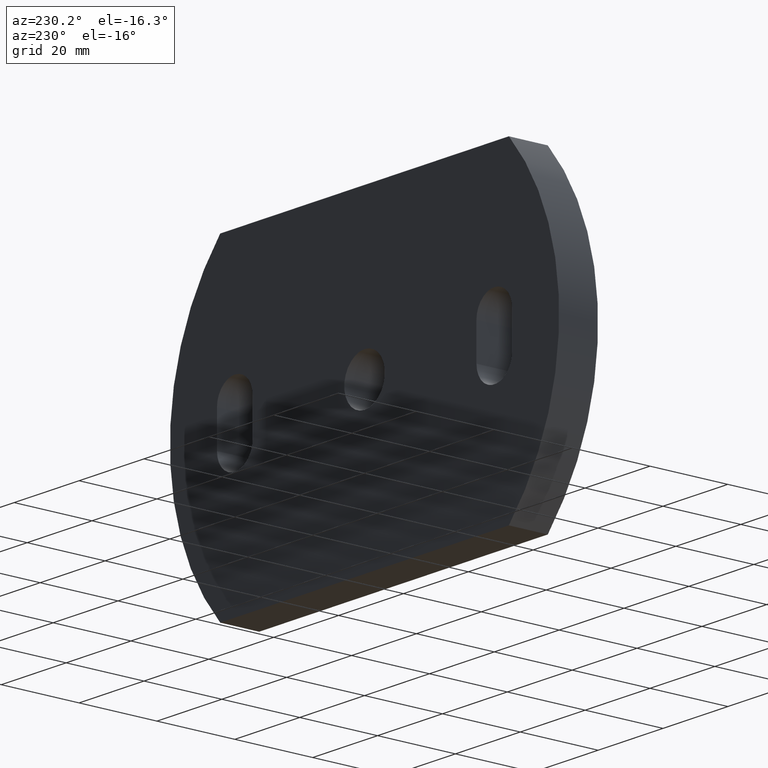
[diagram: clean part render]
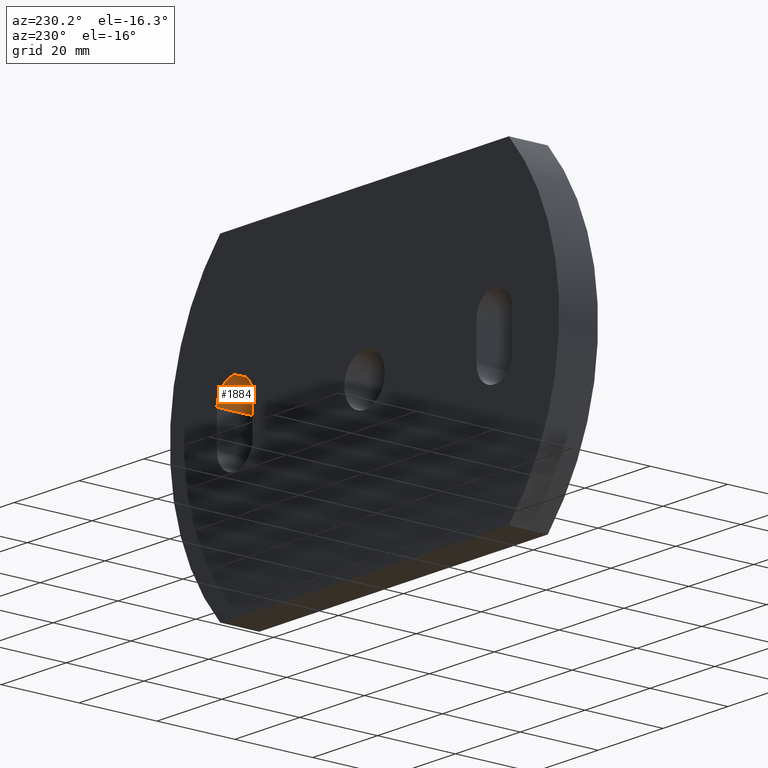
[diagram: same view with one face highlighted and labeled with its STEP entity id]
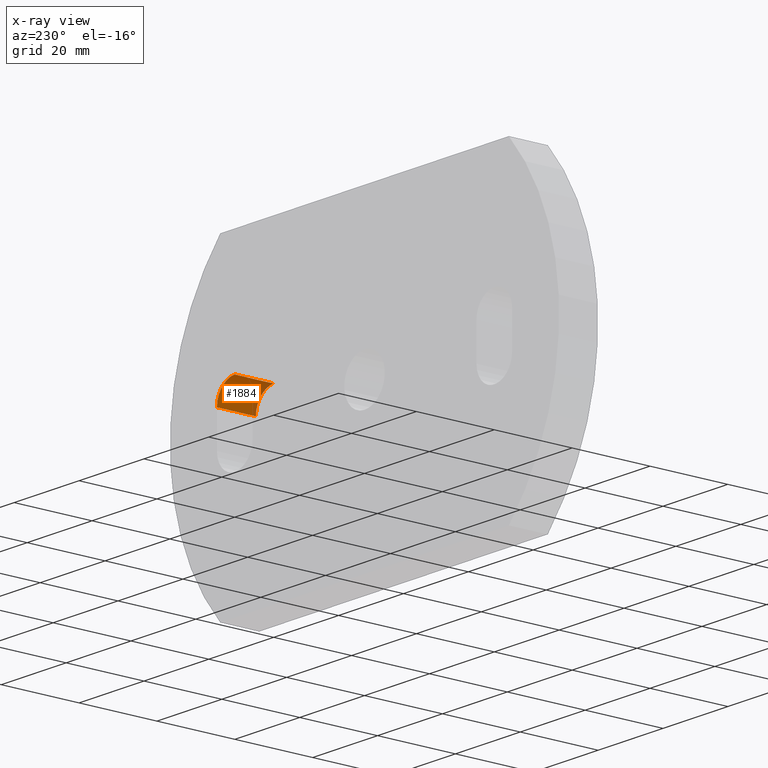
[diagram: x-ray of the same camera — body ghosted, the highlighted face saturated]
A machine part, auxiliary view. The second image highlights one B-rep face of the part: STEP entity #1884.
The next image is the same camera in x-ray: the body ghosted, the highlighted face saturated — about 13% of this face is hidden behind the body in this view.
In plain terms, the highlighted cylindrical surface (edge-blend (fillet) strip) has radius 5.5 mm, axis along (-0, 1, -0).
Its self-contained STEP definition (entity closure, byte-faithful):
#738 = ORIENTED_EDGE ( 'NONE', *, *, #7883, .T. ) ;
#1106 = CARTESIAN_POINT ( 'NONE',  ( 40.00000000000000000, 0.0000000000000000000, 10.00000000000000500 ) ) ;
#1157 = AXIS2_PLACEMENT_3D ( 'NONE', #8767, #4562, #3892 ) ;
#1884 = ADVANCED_FACE ( 'NONE', ( #6241 ), #6770, .F. ) ;
#2040 = LINE ( 'NONE', #9123, #5616 ) ;
#3079 = ORIENTED_EDGE ( 'NONE', *, *, #9151, .F. ) ;
#3336 = VERTEX_POINT ( 'NONE', #1106 ) ;
#3422 = DIRECTION ( 'NONE',  ( 0.0000000000000000000, 0.0000000000000000000, 1.000000000000000000 ) ) ;
#3647 = VERTEX_POINT ( 'NONE', #8158 ) ;
#3836 = VERTEX_POINT ( 'NONE', #9258 ) ;
#3892 = DIRECTION ( 'NONE',  ( 0.0000000000000000000, 0.0000000000000000000, 1.000000000000000000 ) ) ;
#4117 = VECTOR ( 'NONE', #5757, 1000.000000000000000 ) ;
#4562 = DIRECTION ( 'NONE',  ( 0.0000000000000000000, 1.000000000000000000, 0.0000000000000000000 ) ) ;
#5044 = DIRECTION ( 'NONE',  ( 0.0000000000000000000, 1.000000000000000000, 0.0000000000000000000 ) ) ;
#5548 = ORIENTED_EDGE ( 'NONE', *, *, #8925, .T. ) ;
#5559 = VERTEX_POINT ( 'NONE', #7813 ) ;
#5616 = VECTOR ( 'NONE', #7388, 1000.000000000000000 ) ;
#5630 = CIRCLE ( 'NONE', #1157, 5.499999999999998200 ) ;
#5662 = CIRCLE ( 'NONE', #9981, 5.499999999999998200 ) ;
#5757 = DIRECTION ( 'NONE',  ( -0.0000000000000000000, 1.000000000000000000, -0.0000000000000000000 ) ) ;
#5980 = EDGE_CURVE ( 'NONE', #3336, #3836, #5662, .T. ) ;
#6241 = FACE_OUTER_BOUND ( 'NONE', #7443, .T. ) ;
#6770 = CYLINDRICAL_SURFACE ( 'NONE', #9205, 5.499999999999998200 ) ;
#7388 = DIRECTION ( 'NONE',  ( -0.0000000000000000000, 1.000000000000000000, -0.0000000000000000000 ) ) ;
#7443 = EDGE_LOOP ( 'NONE', ( #9779, #738, #5548, #3079 ) ) ;
#7482 = CARTESIAN_POINT ( 'NONE',  ( 40.00000000000000000, 0.0000000000000000000, 4.500000000000007100 ) ) ;
#7813 = CARTESIAN_POINT ( 'NONE',  ( 45.50000000000000000, 10.00000000000000000, 4.500000000000005300 ) ) ;
#7883 = EDGE_CURVE ( 'NONE', #3336, #3647, #8841, .T. ) ;
#8021 = CARTESIAN_POINT ( 'NONE',  ( 40.00000000000000000, 0.0000000000000000000, 10.00000000000000500 ) ) ;
#8158 = CARTESIAN_POINT ( 'NONE',  ( 40.00000000000000000, 10.00000000000000000, 10.00000000000000500 ) ) ;
#8249 = DIRECTION ( 'NONE',  ( -0.0000000000000000000, 1.000000000000000000, -0.0000000000000000000 ) ) ;
#8767 = CARTESIAN_POINT ( 'NONE',  ( 40.00000000000000000, 10.00000000000000000, 4.500000000000007100 ) ) ;
#8841 = LINE ( 'NONE', #8021, #4117 ) ;
#8925 = EDGE_CURVE ( 'NONE', #3647, #5559, #5630, .T. ) ;
#9115 = DIRECTION ( 'NONE',  ( 0.0000000000000000000, 0.0000000000000000000, 1.000000000000000000 ) ) ;
#9123 = CARTESIAN_POINT ( 'NONE',  ( 45.50000000000000000, 0.0000000000000000000, 4.500000000000005300 ) ) ;
#9151 = EDGE_CURVE ( 'NONE', #3836, #5559, #2040, .T. ) ;
#9205 = AXIS2_PLACEMENT_3D ( 'NONE', #10620, #8249, #9115 ) ;
#9258 = CARTESIAN_POINT ( 'NONE',  ( 45.50000000000000000, 0.0000000000000000000, 4.500000000000005300 ) ) ;
#9779 = ORIENTED_EDGE ( 'NONE', *, *, #5980, .F. ) ;
#9981 = AXIS2_PLACEMENT_3D ( 'NONE', #7482, #5044, #3422 ) ;
#10620 = CARTESIAN_POINT ( 'NONE',  ( 40.00000000000000000, 0.0000000000000000000, 4.500000000000007100 ) ) ;